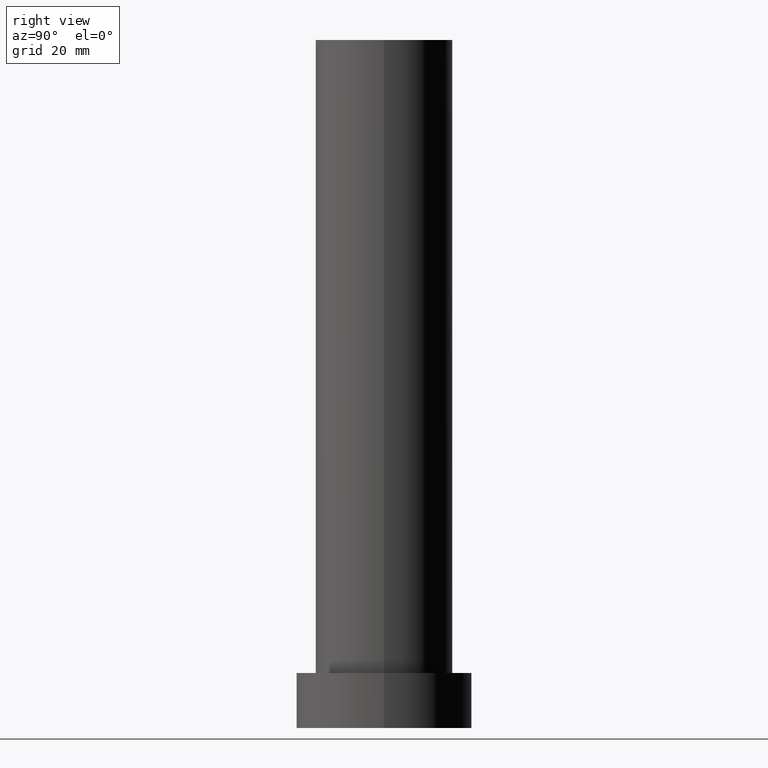
[diagram: clean part render]
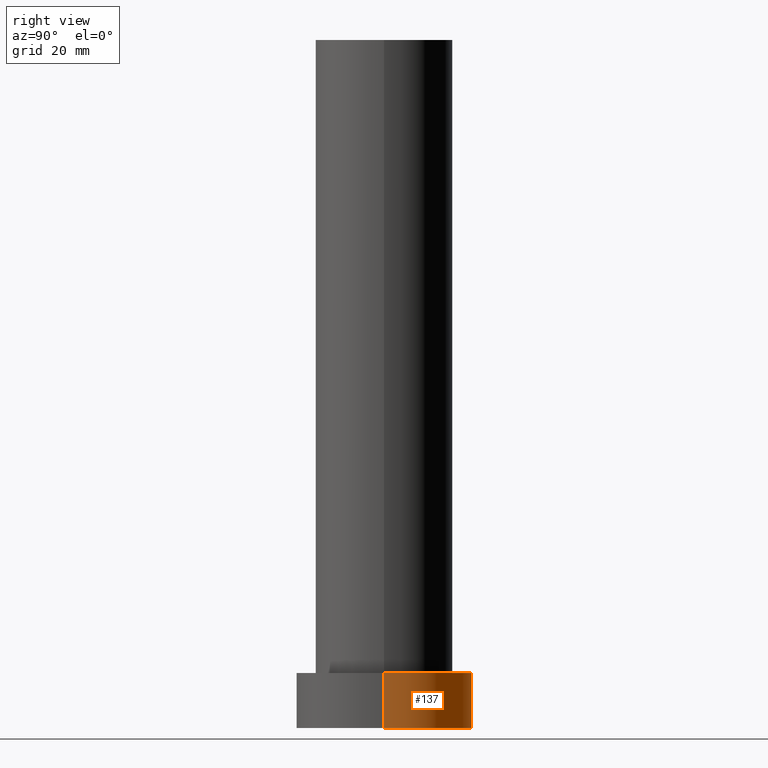
[diagram: same view with one face highlighted and labeled with its STEP entity id]
A machine part, right view. The second image highlights one B-rep face of the part: STEP entity #137.
In plain terms, the highlighted cylindrical surface (partial cylindrical patch) has radius 16 mm, axis along (-0, -0, -1).
Its self-contained STEP definition (entity closure, byte-faithful):
#6 = CARTESIAN_POINT ( 'NONE',  ( 16.00000000000000000, 1.959434878635765131E-15, 0.000000000000000000 ) ) ;
#13 = DIRECTION ( 'NONE',  ( 0.000000000000000000, 0.000000000000000000, 1.000000000000000000 ) ) ;
#15 = LINE ( 'NONE', #227, #153 ) ;
#24 = EDGE_CURVE ( 'NONE', #59, #39, #85, .T. ) ;
#29 = CARTESIAN_POINT ( 'NONE',  ( 16.00000000000000000, 1.959434878635765131E-15, 10.00000000000000000 ) ) ;
#39 = VERTEX_POINT ( 'NONE', #187 ) ;
#47 = AXIS2_PLACEMENT_3D ( 'NONE', #225, #205, #222 ) ;
#48 = VECTOR ( 'NONE', #243, 1000.000000000000000 ) ;
#56 = ORIENTED_EDGE ( 'NONE', *, *, #237, .F. ) ;
#59 = VERTEX_POINT ( 'NONE', #6 ) ;
#85 = CIRCLE ( 'NONE', #226, 16.00000000000000000 ) ;
#86 = CARTESIAN_POINT ( 'NONE',  ( -16.00000000000000000, 0.000000000000000000, 10.00000000000000000 ) ) ;
#92 = VERTEX_POINT ( 'NONE', #29 ) ;
#98 = ORIENTED_EDGE ( 'NONE', *, *, #24, .T. ) ;
#108 = LINE ( 'NONE', #133, #48 ) ;
#115 = VERTEX_POINT ( 'NONE', #86 ) ;
#133 = CARTESIAN_POINT ( 'NONE',  ( 16.00000000000000000, 1.959434878635765131E-15, 10.00000000000000000 ) ) ;
#137 = ADVANCED_FACE ( 'NONE', ( #172 ), #156, .T. ) ;
#140 = CARTESIAN_POINT ( 'NONE',  ( 0.000000000000000000, 0.000000000000000000, 10.00000000000000000 ) ) ;
#153 = VECTOR ( 'NONE', #179, 1000.000000000000000 ) ;
#156 = CYLINDRICAL_SURFACE ( 'NONE', #47, 16.00000000000000000 ) ;
#158 = CIRCLE ( 'NONE', #175, 16.00000000000000000 ) ;
#171 = EDGE_CURVE ( 'NONE', #92, #59, #108, .T. ) ;
#172 = FACE_OUTER_BOUND ( 'NONE', #235, .T. ) ;
#175 = AXIS2_PLACEMENT_3D ( 'NONE', #140, #13, #209 ) ;
#176 = ORIENTED_EDGE ( 'NONE', *, *, #171, .T. ) ;
#179 = DIRECTION ( 'NONE',  ( -0.000000000000000000, -0.000000000000000000, -1.000000000000000000 ) ) ;
#187 = CARTESIAN_POINT ( 'NONE',  ( -16.00000000000000000, 0.000000000000000000, 0.000000000000000000 ) ) ;
#193 = CARTESIAN_POINT ( 'NONE',  ( 0.000000000000000000, 0.000000000000000000, 0.000000000000000000 ) ) ;
#205 = DIRECTION ( 'NONE',  ( -0.000000000000000000, -0.000000000000000000, -1.000000000000000000 ) ) ;
#206 = DIRECTION ( 'NONE',  ( 0.000000000000000000, 0.000000000000000000, 1.000000000000000000 ) ) ;
#209 = DIRECTION ( 'NONE',  ( 1.000000000000000000, 0.000000000000000000, 0.000000000000000000 ) ) ;
#215 = ORIENTED_EDGE ( 'NONE', *, *, #228, .F. ) ;
#221 = DIRECTION ( 'NONE',  ( 1.000000000000000000, 0.000000000000000000, 0.000000000000000000 ) ) ;
#222 = DIRECTION ( 'NONE',  ( -1.000000000000000000, 0.000000000000000000, 0.000000000000000000 ) ) ;
#225 = CARTESIAN_POINT ( 'NONE',  ( 0.000000000000000000, 0.000000000000000000, 10.00000000000000000 ) ) ;
#226 = AXIS2_PLACEMENT_3D ( 'NONE', #193, #206, #221 ) ;
#227 = CARTESIAN_POINT ( 'NONE',  ( -16.00000000000000000, 0.000000000000000000, 10.00000000000000000 ) ) ;
#228 = EDGE_CURVE ( 'NONE', #92, #115, #158, .T. ) ;
#235 = EDGE_LOOP ( 'NONE', ( #215, #176, #98, #56 ) ) ;
#237 = EDGE_CURVE ( 'NONE', #115, #39, #15, .T. ) ;
#243 = DIRECTION ( 'NONE',  ( -0.000000000000000000, -0.000000000000000000, -1.000000000000000000 ) ) ;